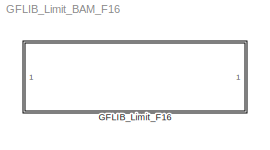
MODEL GFLIB_Limit_BAM_F16
KIND model
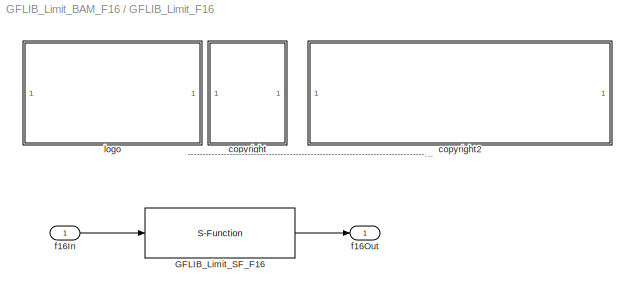
BLOCK [SubSystem] GFLIB_Limit_F16
  Ports = [1, 1]
  RequestExecContextInheritance = off
  SID = 1
BLOCK [S-Function] GFLIB_Limit_F16/GFLIB_Limit_SF_F16
  EnableBusSupport = off
  FunctionName = GFLIB_Limit_SF_F16
  Parameters = f16UpperLimit,f16LowerLim
  Ports = [1, 1]
  SID = 3
BLOCK [SubSystem] GFLIB_Limit_F16/<copyright redacted>
  Ports = []
  RequestExecContextInheritance = off
  SID = 4
BLOCK [SubSystem] GFLIB_Limit_F16/copyright2
  Ports = []
  RequestExecContextInheritance = off
  SID = 5
BLOCK [Inport] GFLIB_Limit_F16/f16In
  IconDisplay = Port number
  SID = 2
BLOCK [Outport] GFLIB_Limit_F16/f16Out
  IconDisplay = Port number
  SID = 7
BLOCK [SubSystem] GFLIB_Limit_F16/logo
  Ports = []
  RequestExecContextInheritance = off
  SID = 6
ANNOTATION GFLIB_Limit_F16: ---------------------------------------------------------------------------------------------------------------------------------------------------------------------------------------------------
LINE GFLIB_Limit_F16/GFLIB_Limit_SF_F16:1 -> GFLIB_Limit_F16/f16Out:1
LINE GFLIB_Limit_F16/f16In:1 -> GFLIB_Limit_F16/GFLIB_Limit_SF_F16:1
